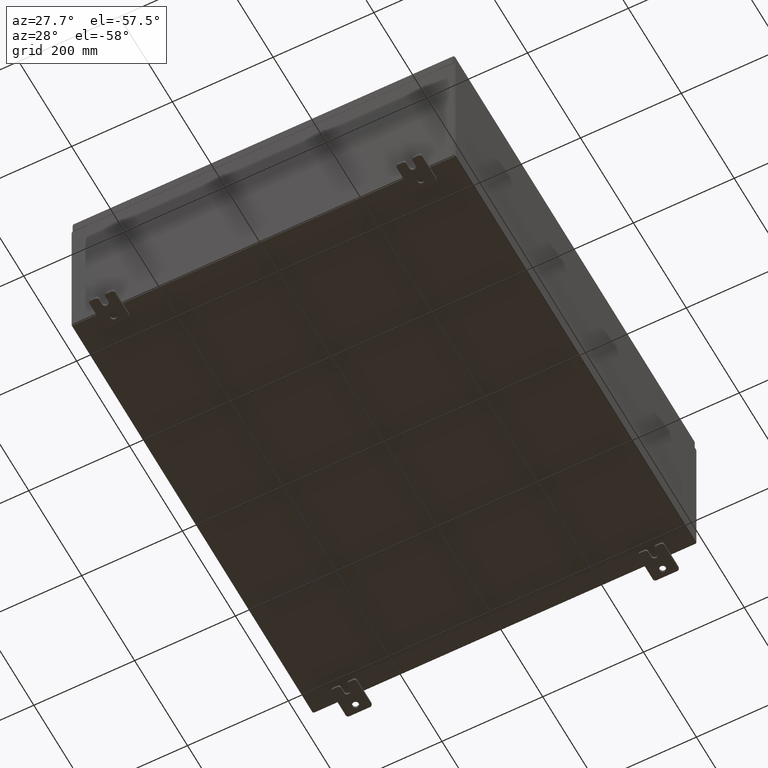
[diagram: clean part render]
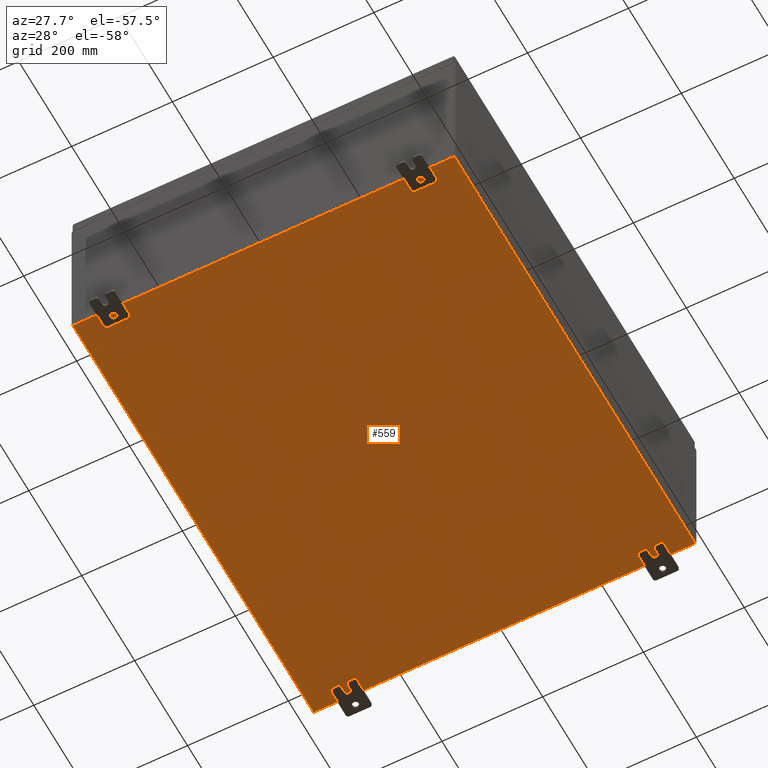
[diagram: same view with one face highlighted and labeled with its STEP entity id]
A machine part, auxiliary view. The second image highlights one B-rep face of the part: STEP entity #559.
In plain terms, the highlighted planar face has unit normal (0, 0, -1).
Its self-contained STEP definition (entity closure, byte-faithful):
#559 = ADVANCED_FACE ( 'NONE', ( #29219 ), #31002, .T. ) ;
#685 = CARTESIAN_POINT ( 'NONE',  ( -15.00000000000000400, -17.92530000000000000, -0.07470000000000000300 ) ) ;
#5301 = VECTOR ( 'NONE', #25963, 39.37007874015748100 ) ;
#5572 = EDGE_LOOP ( 'NONE', ( #8851, #56613, #10774, #51708 ) ) ;
#5767 = DIRECTION ( 'NONE',  ( 1.000000000000000000, 0.0000000000000000000, 0.0000000000000000000 ) ) ;
#6947 = CARTESIAN_POINT ( 'NONE',  ( 0.0000000000000000000, 0.0000000000000000000, -0.07470000000000000300 ) ) ;
#7176 = VECTOR ( 'NONE', #51184, 39.37007874015748100 ) ;
#8474 = LINE ( 'NONE', #10846, #5301 ) ;
#8851 = ORIENTED_EDGE ( 'NONE', *, *, #14388, .F. ) ;
#9756 = CARTESIAN_POINT ( 'NONE',  ( 14.91229999999999800, -17.92530000000000000, -0.07470000000000000300 ) ) ;
#10732 = VERTEX_POINT ( 'NONE', #35478 ) ;
#10774 = ORIENTED_EDGE ( 'NONE', *, *, #47910, .F. ) ;
#10846 = CARTESIAN_POINT ( 'NONE',  ( -14.91230000000000200, -17.92530000000000000, -0.07469999999999994700 ) ) ;
#14241 = VERTEX_POINT ( 'NONE', #9756 ) ;
#14388 = EDGE_CURVE ( 'NONE', #52788, #14241, #57823, .T. ) ;
#14398 = EDGE_CURVE ( 'NONE', #52788, #10732, #8474, .T. ) ;
#15601 = CARTESIAN_POINT ( 'NONE',  ( 14.91229999999999800, 17.92530000000000000, -0.07470000000000251400 ) ) ;
#23541 = LINE ( 'NONE', #31321, #62611 ) ;
#25963 = DIRECTION ( 'NONE',  ( -0.0000000000000000000, 1.000000000000000000, -0.0000000000000000000 ) ) ;
#29219 = FACE_OUTER_BOUND ( 'NONE', #5572, .T. ) ;
#31002 = PLANE ( 'NONE',  #59920 ) ;
#31321 = CARTESIAN_POINT ( 'NONE',  ( -15.00000000000000400, 17.92530000000000000, -0.07470000000000000300 ) ) ;
#32650 = DIRECTION ( 'NONE',  ( 0.0000000000000000000, 0.0000000000000000000, -1.000000000000000000 ) ) ;
#34285 = LINE ( 'NONE', #15601, #7176 ) ;
#35478 = CARTESIAN_POINT ( 'NONE',  ( -14.91230000000000200, 17.92530000000000000, -0.07470000000000000300 ) ) ;
#36460 = DIRECTION ( 'NONE',  ( -1.000000000000000000, -0.0000000000000000000, -0.0000000000000000000 ) ) ;
#37442 = EDGE_CURVE ( 'NONE', #49268, #14241, #34285, .T. ) ;
#39912 = CARTESIAN_POINT ( 'NONE',  ( -14.91230000000000200, -17.92530000000000000, -0.07469999999999994700 ) ) ;
#43035 = CARTESIAN_POINT ( 'NONE',  ( 14.91229999999999800, 17.92530000000000000, -0.07470000000000251400 ) ) ;
#44308 = VECTOR ( 'NONE', #5767, 39.37007874015748100 ) ;
#47910 = EDGE_CURVE ( 'NONE', #49268, #10732, #23541, .T. ) ;
#49268 = VERTEX_POINT ( 'NONE', #43035 ) ;
#51184 = DIRECTION ( 'NONE',  ( -0.0000000000000000000, -1.000000000000000000, 8.208677865577646300E-017 ) ) ;
#51708 = ORIENTED_EDGE ( 'NONE', *, *, #37442, .T. ) ;
#52788 = VERTEX_POINT ( 'NONE', #39912 ) ;
#56613 = ORIENTED_EDGE ( 'NONE', *, *, #14398, .T. ) ;
#57823 = LINE ( 'NONE', #685, #44308 ) ;
#59920 = AXIS2_PLACEMENT_3D ( 'NONE', #6947, #32650, #61271 ) ;
#61271 = DIRECTION ( 'NONE',  ( -1.000000000000000000, 0.0000000000000000000, -0.0000000000000000000 ) ) ;
#62611 = VECTOR ( 'NONE', #36460, 39.37007874015748100 ) ;